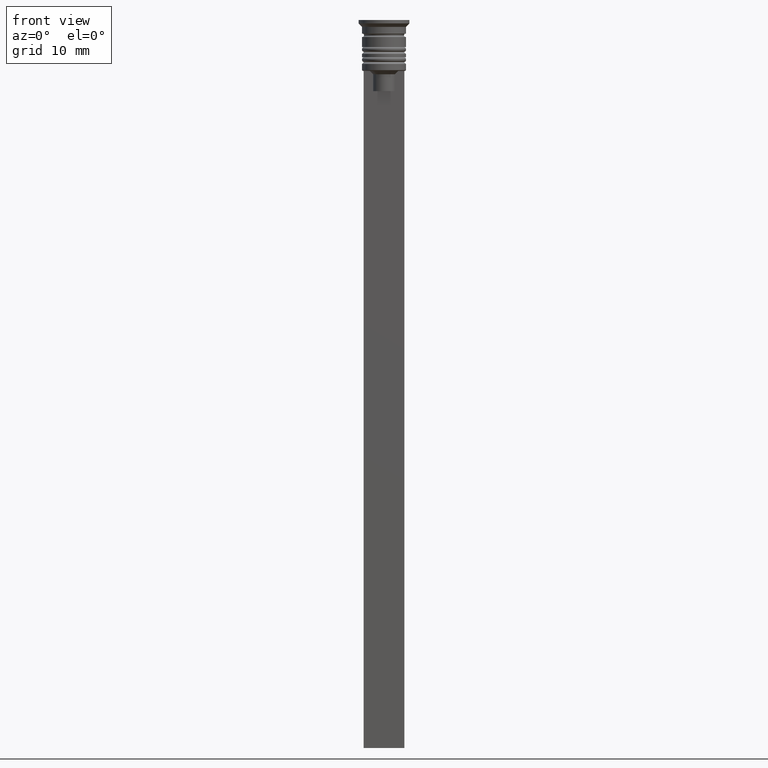
[diagram: clean part render]
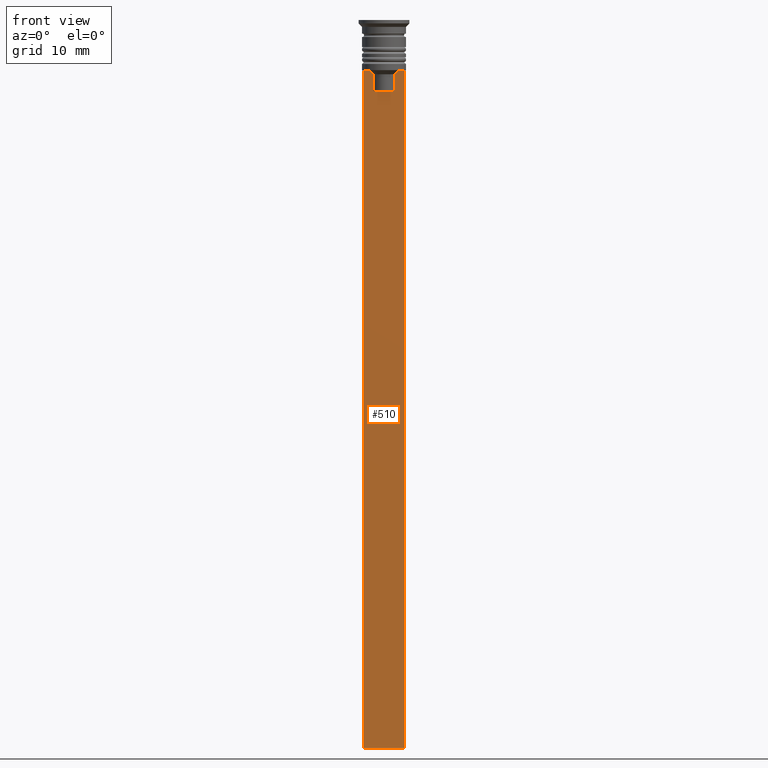
[diagram: same view with one face highlighted and labeled with its STEP entity id]
A machine part, front view. The second image highlights one B-rep face of the part: STEP entity #510.
In plain terms, the highlighted planar face has unit normal (0, -1, -0).
Its self-contained STEP definition (entity closure, byte-faithful):
#4 = CARTESIAN_POINT ( 'NONE',  ( 0.000000000000000000, -0.3500000000000000333, -10.49999999999999822 ) ) ;
#39 = LINE ( 'NONE', #366, #1404 ) ;
#87 = LINE ( 'NONE', #2063, #1337 ) ;
#111 = ORIENTED_EDGE ( 'NONE', *, *, #638, .F. ) ;
#115 = CARTESIAN_POINT ( 'NONE',  ( 2.999999999999995559, -0.3500000000000000333, -1.459304675784417915 ) ) ;
#127 = VECTOR ( 'NONE', #605, 1000.000000000000000 ) ;
#139 = EDGE_CURVE ( 'NONE', #1266, #1498, #802, .T. ) ;
#148 = VERTEX_POINT ( 'NONE', #2060 ) ;
#166 = ORIENTED_EDGE ( 'NONE', *, *, #1029, .F. ) ;
#195 = LINE ( 'NONE', #1385, #1926 ) ;
#211 = VERTEX_POINT ( 'NONE', #418 ) ;
#268 = EDGE_CURVE ( 'NONE', #1415, #701, #908, .T. ) ;
#283 = ORIENTED_EDGE ( 'NONE', *, *, #1502, .F. ) ;
#343 = DIRECTION ( 'NONE',  ( 1.000000000000000000, 0.000000000000000000, 0.000000000000000000 ) ) ;
#351 = CARTESIAN_POINT ( 'NONE',  ( 1.952040775369266346, -0.3500000000000000333, -7.667021484535463394 ) ) ;
#366 = CARTESIAN_POINT ( 'NONE',  ( 1.612451549659713601, -0.3500000000000000333, 0.000000000000000000 ) ) ;
#393 = DIRECTION ( 'NONE',  ( 0.000000000000000000, 0.000000000000000000, -1.000000000000000000 ) ) ;
#418 = CARTESIAN_POINT ( 'NONE',  ( 2.121320343559647270, -0.3500000000000000333, -7.500000000000000000 ) ) ;
#446 = LINE ( 'NONE', #840, #548 ) ;
#451 = EDGE_CURVE ( 'NONE', #809, #148, #446, .T. ) ;
#510 = ADVANCED_FACE ( 'NONE', ( #1631 ), #653, .T. ) ;
#532 = DIRECTION ( 'NONE',  ( 0.000000000000000000, 0.000000000000000000, -1.000000000000000000 ) ) ;
#538 = CARTESIAN_POINT ( 'NONE',  ( -1.952043732028444500, -0.3500000000000000333, -7.667018567316270961 ) ) ;
#539 = ORIENTED_EDGE ( 'NONE', *, *, #1802, .F. ) ;
#548 = VECTOR ( 'NONE', #2011, 1000.000000000000000 ) ;
#581 = EDGE_LOOP ( 'NONE', ( #1408, #1747, #1048, #283, #663, #1320, #539, #166, #111, #1258 ) ) ;
#605 = DIRECTION ( 'NONE',  ( 1.000000000000000000, 0.000000000000000000, 0.000000000000000000 ) ) ;
#619 = VERTEX_POINT ( 'NONE', #1062 ) ;
#638 = EDGE_CURVE ( 'NONE', #1805, #1726, #1546, .T. ) ;
#653 = PLANE ( 'NONE',  #979 ) ;
#663 = ORIENTED_EDGE ( 'NONE', *, *, #268, .F. ) ;
#696 = VECTOR ( 'NONE', #1037, 1000.000000000000000 ) ;
#701 = VERTEX_POINT ( 'NONE', #1937 ) ;
#729 = VECTOR ( 'NONE', #393, 1000.000000000000000 ) ;
#775 = CARTESIAN_POINT ( 'NONE',  ( 2.999999999999995559, -0.3500000000000000333, -7.500000000000000000 ) ) ;
#798 = CARTESIAN_POINT ( 'NONE',  ( -3.000000000000004441, -0.3500000000000000333, -7.500000000000000000 ) ) ;
#802 = B_SPLINE_CURVE_WITH_KNOTS ( 'NONE', 3,
 ( #2023, #538, #1188, #1391 ),
 .UNSPECIFIED., .F., .F.,
 ( 4, 4 ),
 ( 0.003684653461239337929, 0.004398058763641257696 ),
 .UNSPECIFIED. ) ;
#809 = VERTEX_POINT ( 'NONE', #798 ) ;
#828 = B_SPLINE_CURVE_WITH_KNOTS ( 'NONE', 3,
 ( #1708, #1896, #351, #1368 ),
 .UNSPECIFIED., .F., .F.,
 ( 4, 4 ),
 ( 0.008600796474521228696, 0.009317962624906526645 ),
 .UNSPECIFIED. ) ;
#840 = CARTESIAN_POINT ( 'NONE',  ( -3.000000000000004441, -0.3500000000000000333, -1.459304675784417915 ) ) ;
#897 = CARTESIAN_POINT ( 'NONE',  ( -1.612451549659713601, -0.3500000000000000333, -10.49999999999999822 ) ) ;
#908 = LINE ( 'NONE', #1265, #729 ) ;
#973 = EDGE_CURVE ( 'NONE', #1498, #1805, #195, .T. ) ;
#979 = AXIS2_PLACEMENT_3D ( 'NONE', #115, #1367, #1389 ) ;
#1029 = EDGE_CURVE ( 'NONE', #1726, #619, #39, .T. ) ;
#1037 = DIRECTION ( 'NONE',  ( 1.000000000000000000, 0.000000000000000000, 0.000000000000000000 ) ) ;
#1048 = ORIENTED_EDGE ( 'NONE', *, *, #451, .T. ) ;
#1060 = DIRECTION ( 'NONE',  ( -0.000000000000000000, -0.000000000000000000, 1.000000000000000000 ) ) ;
#1062 = CARTESIAN_POINT ( 'NONE',  ( 1.612451549659713601, -0.3500000000000000333, -8.000000000000000000 ) ) ;
#1188 = CARTESIAN_POINT ( 'NONE',  ( -1.782527878033862478, -0.3500000000000000333, -7.833794036819864637 ) ) ;
#1258 = ORIENTED_EDGE ( 'NONE', *, *, #973, .F. ) ;
#1265 = CARTESIAN_POINT ( 'NONE',  ( 2.999999999999995559, -0.3500000000000000333, -1.459304675784417915 ) ) ;
#1266 = VERTEX_POINT ( 'NONE', #1951 ) ;
#1314 = EDGE_CURVE ( 'NONE', #809, #1266, #1783, .T. ) ;
#1320 = ORIENTED_EDGE ( 'NONE', *, *, #1435, .F. ) ;
#1337 = VECTOR ( 'NONE', #2092, 1000.000000000000000 ) ;
#1367 = DIRECTION ( 'NONE',  ( 0.000000000000000000, -1.000000000000000000, -0.000000000000000000 ) ) ;
#1368 = CARTESIAN_POINT ( 'NONE',  ( 2.121320343559647270, -0.3500000000000000333, -7.500000000000000000 ) ) ;
#1385 = CARTESIAN_POINT ( 'NONE',  ( -1.612451549659713601, -0.3500000000000000333, 0.000000000000000000 ) ) ;
#1389 = DIRECTION ( 'NONE',  ( 0.000000000000000000, 0.000000000000000000, -1.000000000000000000 ) ) ;
#1391 = CARTESIAN_POINT ( 'NONE',  ( -1.612451549659713601, -0.3500000000000000333, -8.000000000000000000 ) ) ;
#1404 = VECTOR ( 'NONE', #1060, 1000.000000000000000 ) ;
#1408 = ORIENTED_EDGE ( 'NONE', *, *, #139, .F. ) ;
#1415 = VERTEX_POINT ( 'NONE', #1871 ) ;
#1435 = EDGE_CURVE ( 'NONE', #211, #1415, #2043, .T. ) ;
#1498 = VERTEX_POINT ( 'NONE', #1908 ) ;
#1502 = EDGE_CURVE ( 'NONE', #701, #148, #87, .T. ) ;
#1546 = LINE ( 'NONE', #4, #2132 ) ;
#1631 = FACE_OUTER_BOUND ( 'NONE', #581, .T. ) ;
#1708 = CARTESIAN_POINT ( 'NONE',  ( 1.612451549659713601, -0.3500000000000000333, -8.000000000000000000 ) ) ;
#1726 = VERTEX_POINT ( 'NONE', #1868 ) ;
#1747 = ORIENTED_EDGE ( 'NONE', *, *, #1314, .F. ) ;
#1783 = LINE ( 'NONE', #775, #127 ) ;
#1802 = EDGE_CURVE ( 'NONE', #619, #211, #828, .T. ) ;
#1805 = VERTEX_POINT ( 'NONE', #897 ) ;
#1868 = CARTESIAN_POINT ( 'NONE',  ( 1.612451549659713601, -0.3500000000000000333, -10.49999999999999822 ) ) ;
#1871 = CARTESIAN_POINT ( 'NONE',  ( 2.999999999999995559, -0.3500000000000000333, -7.500000000000000000 ) ) ;
#1896 = CARTESIAN_POINT ( 'NONE',  ( 1.782523989086206795, -0.3500000000000000333, -7.833797837268088315 ) ) ;
#1908 = CARTESIAN_POINT ( 'NONE',  ( -1.612451549659713601, -0.3500000000000000333, -8.000000000000000000 ) ) ;
#1926 = VECTOR ( 'NONE', #532, 1000.000000000000000 ) ;
#1937 = CARTESIAN_POINT ( 'NONE',  ( 2.999999999999995559, -0.3500000000000000333, -107.5000000000000000 ) ) ;
#1951 = CARTESIAN_POINT ( 'NONE',  ( -2.121320343559647270, -0.3500000000000000333, -7.500000000000000000 ) ) ;
#2011 = DIRECTION ( 'NONE',  ( 0.000000000000000000, 0.000000000000000000, -1.000000000000000000 ) ) ;
#2016 = CARTESIAN_POINT ( 'NONE',  ( 2.999999999999995559, -0.3500000000000000333, -7.500000000000000000 ) ) ;
#2023 = CARTESIAN_POINT ( 'NONE',  ( -2.121320343559647270, -0.3500000000000000333, -7.500000000000000000 ) ) ;
#2043 = LINE ( 'NONE', #2016, #696 ) ;
#2060 = CARTESIAN_POINT ( 'NONE',  ( -3.000000000000004441, -0.3500000000000000333, -107.5000000000000000 ) ) ;
#2063 = CARTESIAN_POINT ( 'NONE',  ( 2.999999999999995559, -0.3500000000000000333, -107.5000000000000000 ) ) ;
#2092 = DIRECTION ( 'NONE',  ( -1.000000000000000000, 0.000000000000000000, 0.000000000000000000 ) ) ;
#2132 = VECTOR ( 'NONE', #343, 1000.000000000000000 ) ;